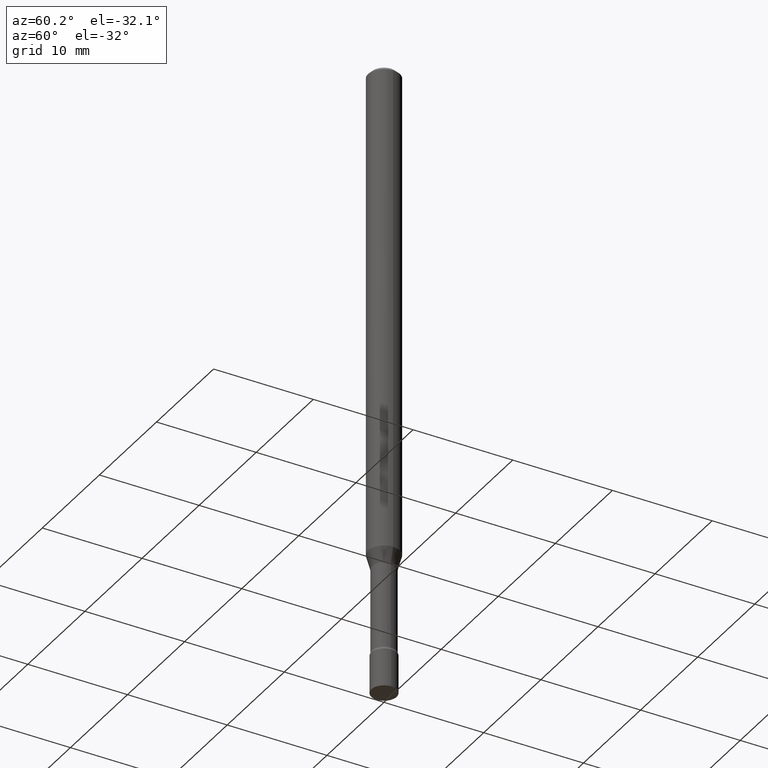
[diagram: clean part render]
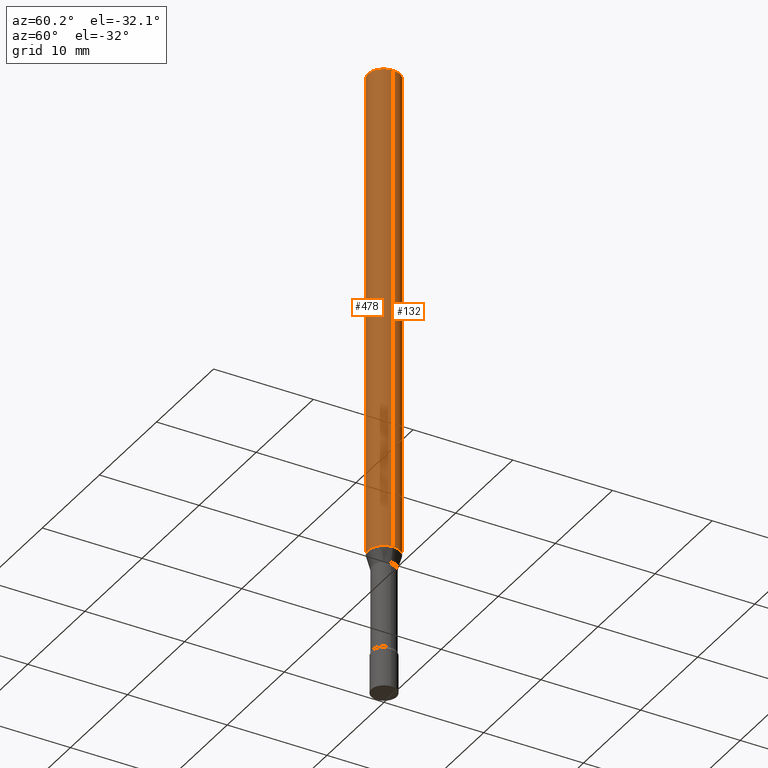
[diagram: same view with one multi-face feature highlighted, each face labeled with its STEP entity id]
A machine part, auxiliary view. The highlighted faces form ONE feature: a constant-radius fillet chain: 2 tangent blend faces with common blend radius 1.5875 mm. The faces share edges in the B-rep.
Their STEP definitions:
[1] entity #478 (Cylinder):
#14 = CARTESIAN_POINT ( 'NONE',  ( 0.06250000000000000000, -7.217426865912943982E-15, -1.942153212482682578 ) ) ;
#20 = DIRECTION ( 'NONE',  ( 1.000000000000000000, -6.982962677686262766E-15, 0.000000000000000000 ) ) ;
#39 = AXIS2_PLACEMENT_3D ( 'NONE', #94, #204, #201 ) ;
#79 = EDGE_CURVE ( 'NONE', #135, #105, #498, .T. ) ;
#80 = DIRECTION ( 'NONE',  ( 1.000000000000000000, -6.982962677686266711E-15, 4.876176775795935793E-29 ) ) ;
#94 = CARTESIAN_POINT ( 'NONE',  ( 3.668203209277712094E-31, -5.237222008264728876E-17, -0.01500000000000003067 ) ) ;
#105 = VERTEX_POINT ( 'NONE', #382 ) ;
#114 = CARTESIAN_POINT ( 'NONE',  ( 0.000000000000000000, 0.000000000000000000, 0.000000000000000000 ) ) ;
#125 = DIRECTION ( 'NONE',  ( -2.445468806185136877E-29, 3.491481338843145188E-15, 1.000000000000000000 ) ) ;
#135 = VERTEX_POINT ( 'NONE', #14 ) ;
#137 = ORIENTED_EDGE ( 'NONE', *, *, #459, .F. ) ;
#142 = CIRCLE ( 'NONE', #192, 0.06250000000000000000 ) ;
#149 = DIRECTION ( 'NONE',  ( -2.445468806185136877E-29, 3.491481338843145188E-15, 1.000000000000000000 ) ) ;
#150 = CIRCLE ( 'NONE', #39, 0.06250000000000000000 ) ;
#166 = CARTESIAN_POINT ( 'NONE',  ( 4.749475097958653364E-29, -6.780991698557552312E-15, -1.942153212482682578 ) ) ;
#180 = ORIENTED_EDGE ( 'NONE', *, *, #492, .F. ) ;
#191 = CARTESIAN_POINT ( 'NONE',  ( -0.06250000000000000000, 4.440892098500626162E-16, -3.074334431409316114E-30 ) ) ;
#192 = AXIS2_PLACEMENT_3D ( 'NONE', #166, #282, #20 ) ;
#197 = CARTESIAN_POINT ( 'NONE',  ( -0.06250000000000000000, -2.972592749470037277E-15, -0.01500000000000003067 ) ) ;
#201 = DIRECTION ( 'NONE',  ( 1.000000000000000000, -6.982962677686266711E-15, 0.000000000000000000 ) ) ;
#204 = DIRECTION ( 'NONE',  ( -2.445468806185136597E-29, 3.491481338843145583E-15, 1.000000000000000000 ) ) ;
#207 = CARTESIAN_POINT ( 'NONE',  ( 0.06250000000000000000, -4.364351673553916694E-16, 3.047610484872459871E-30 ) ) ;
#270 = CYLINDRICAL_SURFACE ( 'NONE', #472, 0.06250000000000000000 ) ;
#275 = DIRECTION ( 'NONE',  ( -2.445468806185136597E-29, 3.491481338843145583E-15, 1.000000000000000000 ) ) ;
#279 = LINE ( 'NONE', #191, #326 ) ;
#282 = DIRECTION ( 'NONE',  ( -2.445468806185136597E-29, 3.491481338843145583E-15, 1.000000000000000000 ) ) ;
#308 = FACE_OUTER_BOUND ( 'NONE', #339, .T. ) ;
#326 = VECTOR ( 'NONE', #149, 39.37007874015748143 ) ;
#334 = VECTOR ( 'NONE', #125, 39.37007874015748143 ) ;
#339 = EDGE_LOOP ( 'NONE', ( #137, #386, #448, #180 ) ) ;
#346 = VERTEX_POINT ( 'NONE', #360 ) ;
#360 = CARTESIAN_POINT ( 'NONE',  ( -0.06250000000000000000, -6.336902488707489696E-15, -1.942153212482682578 ) ) ;
#382 = CARTESIAN_POINT ( 'NONE',  ( 0.06250000000000000000, -4.888073874380389458E-16, -0.01500000000000003067 ) ) ;
#386 = ORIENTED_EDGE ( 'NONE', *, *, #483, .T. ) ;
#407 = VERTEX_POINT ( 'NONE', #197 ) ;
#448 = ORIENTED_EDGE ( 'NONE', *, *, #79, .T. ) ;
#459 = EDGE_CURVE ( 'NONE', #346, #407, #279, .T. ) ;
#472 = AXIS2_PLACEMENT_3D ( 'NONE', #114, #275, #80 ) ;
#478 = ADVANCED_FACE ( 'NONE', ( #308 ), #270, .T. ) ;
#483 = EDGE_CURVE ( 'NONE', #346, #135, #142, .T. ) ;
#492 = EDGE_CURVE ( 'NONE', #407, #105, #150, .T. ) ;
#498 = LINE ( 'NONE', #207, #334 ) ;
[2] entity #132 (Cylinder):
#10 = ORIENTED_EDGE ( 'NONE', *, *, #79, .F. ) ;
#14 = CARTESIAN_POINT ( 'NONE',  ( 0.06250000000000000000, -7.217426865912943982E-15, -1.942153212482682578 ) ) ;
#43 = ORIENTED_EDGE ( 'NONE', *, *, #459, .T. ) ;
#51 = DIRECTION ( 'NONE',  ( -2.445468806185136597E-29, 3.491481338843145583E-15, 1.000000000000000000 ) ) ;
#65 = CARTESIAN_POINT ( 'NONE',  ( 4.749475097958653364E-29, -6.780991698557552312E-15, -1.942153212482682578 ) ) ;
#79 = EDGE_CURVE ( 'NONE', #135, #105, #498, .T. ) ;
#83 = EDGE_LOOP ( 'NONE', ( #468, #43, #411, #10 ) ) ;
#88 = CARTESIAN_POINT ( 'NONE',  ( 0.000000000000000000, 0.000000000000000000, 0.000000000000000000 ) ) ;
#105 = VERTEX_POINT ( 'NONE', #382 ) ;
#125 = DIRECTION ( 'NONE',  ( -2.445468806185136877E-29, 3.491481338843145188E-15, 1.000000000000000000 ) ) ;
#132 = ADVANCED_FACE ( 'NONE', ( #493 ), #454, .T. ) ;
#135 = VERTEX_POINT ( 'NONE', #14 ) ;
#149 = DIRECTION ( 'NONE',  ( -2.445468806185136877E-29, 3.491481338843145188E-15, 1.000000000000000000 ) ) ;
#156 = AXIS2_PLACEMENT_3D ( 'NONE', #88, #51, #371 ) ;
#179 = DIRECTION ( 'NONE',  ( 1.000000000000000000, -6.982962677686262766E-15, 0.000000000000000000 ) ) ;
#191 = CARTESIAN_POINT ( 'NONE',  ( -0.06250000000000000000, 4.440892098500626162E-16, -3.074334431409316114E-30 ) ) ;
#193 = DIRECTION ( 'NONE',  ( 1.000000000000000000, -6.982962677686266711E-15, 0.000000000000000000 ) ) ;
#197 = CARTESIAN_POINT ( 'NONE',  ( -0.06250000000000000000, -2.972592749470037277E-15, -0.01500000000000003067 ) ) ;
#207 = CARTESIAN_POINT ( 'NONE',  ( 0.06250000000000000000, -4.364351673553916694E-16, 3.047610484872459871E-30 ) ) ;
#256 = EDGE_CURVE ( 'NONE', #135, #346, #314, .T. ) ;
#279 = LINE ( 'NONE', #191, #326 ) ;
#294 = CIRCLE ( 'NONE', #355, 0.06250000000000000000 ) ;
#303 = DIRECTION ( 'NONE',  ( -2.445468806185136597E-29, 3.491481338843145583E-15, 1.000000000000000000 ) ) ;
#314 = CIRCLE ( 'NONE', #400, 0.06250000000000000000 ) ;
#326 = VECTOR ( 'NONE', #149, 39.37007874015748143 ) ;
#334 = VECTOR ( 'NONE', #125, 39.37007874015748143 ) ;
#346 = VERTEX_POINT ( 'NONE', #360 ) ;
#355 = AXIS2_PLACEMENT_3D ( 'NONE', #442, #488, #193 ) ;
#360 = CARTESIAN_POINT ( 'NONE',  ( -0.06250000000000000000, -6.336902488707489696E-15, -1.942153212482682578 ) ) ;
#371 = DIRECTION ( 'NONE',  ( 1.000000000000000000, -6.982962677686266711E-15, 4.876176775795935793E-29 ) ) ;
#382 = CARTESIAN_POINT ( 'NONE',  ( 0.06250000000000000000, -4.888073874380389458E-16, -0.01500000000000003067 ) ) ;
#400 = AXIS2_PLACEMENT_3D ( 'NONE', #65, #303, #179 ) ;
#403 = EDGE_CURVE ( 'NONE', #105, #407, #294, .T. ) ;
#407 = VERTEX_POINT ( 'NONE', #197 ) ;
#411 = ORIENTED_EDGE ( 'NONE', *, *, #403, .F. ) ;
#442 = CARTESIAN_POINT ( 'NONE',  ( 3.668203209277712094E-31, -5.237222008264728876E-17, -0.01500000000000003067 ) ) ;
#454 = CYLINDRICAL_SURFACE ( 'NONE', #156, 0.06250000000000000000 ) ;
#459 = EDGE_CURVE ( 'NONE', #346, #407, #279, .T. ) ;
#468 = ORIENTED_EDGE ( 'NONE', *, *, #256, .T. ) ;
#488 = DIRECTION ( 'NONE',  ( -2.445468806185136597E-29, 3.491481338843145583E-15, 1.000000000000000000 ) ) ;
#493 = FACE_OUTER_BOUND ( 'NONE', #83, .T. ) ;
#498 = LINE ( 'NONE', #207, #334 ) ;